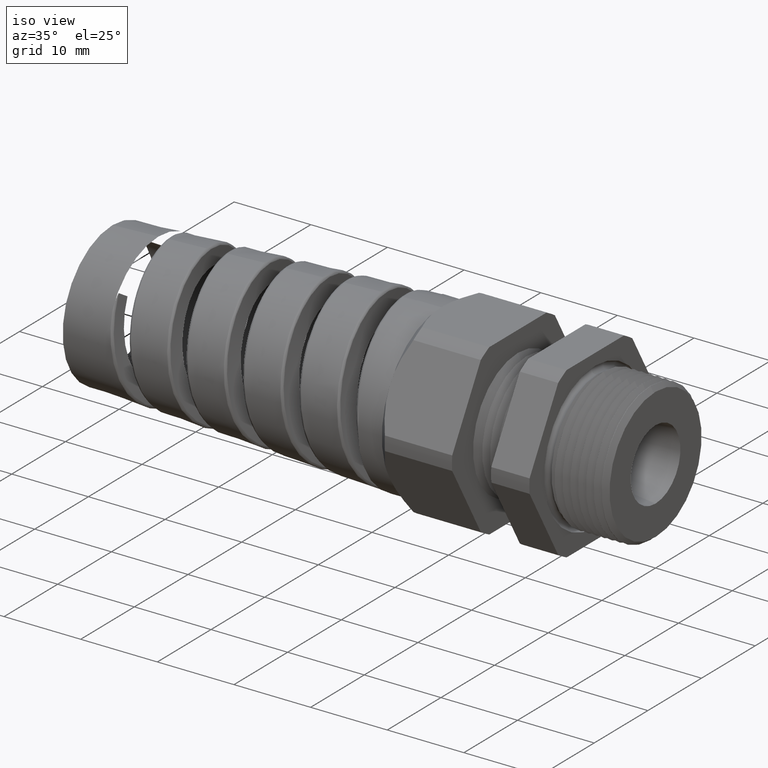
[diagram: clean part render]
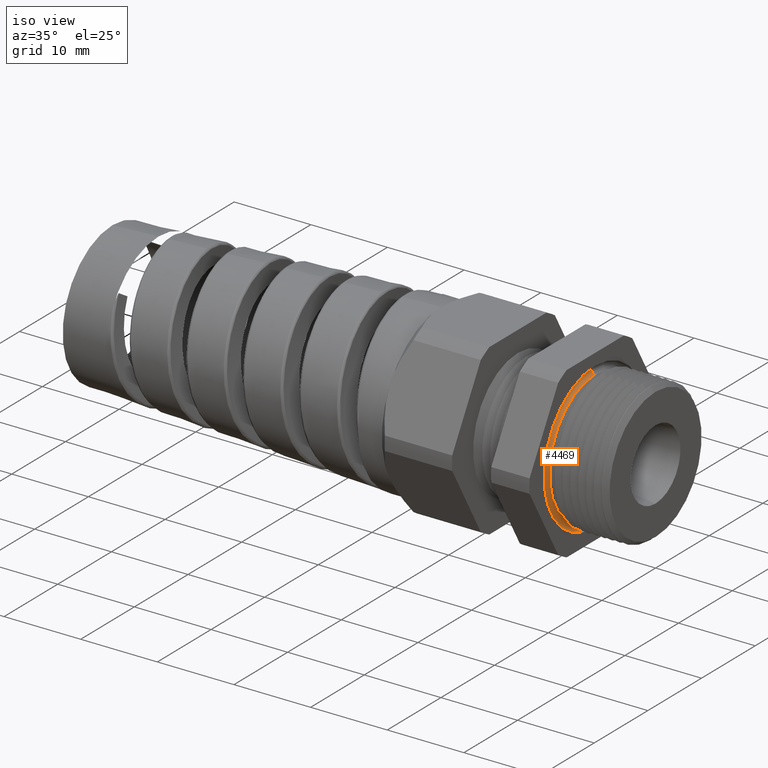
[diagram: same view with one face highlighted and labeled with its STEP entity id]
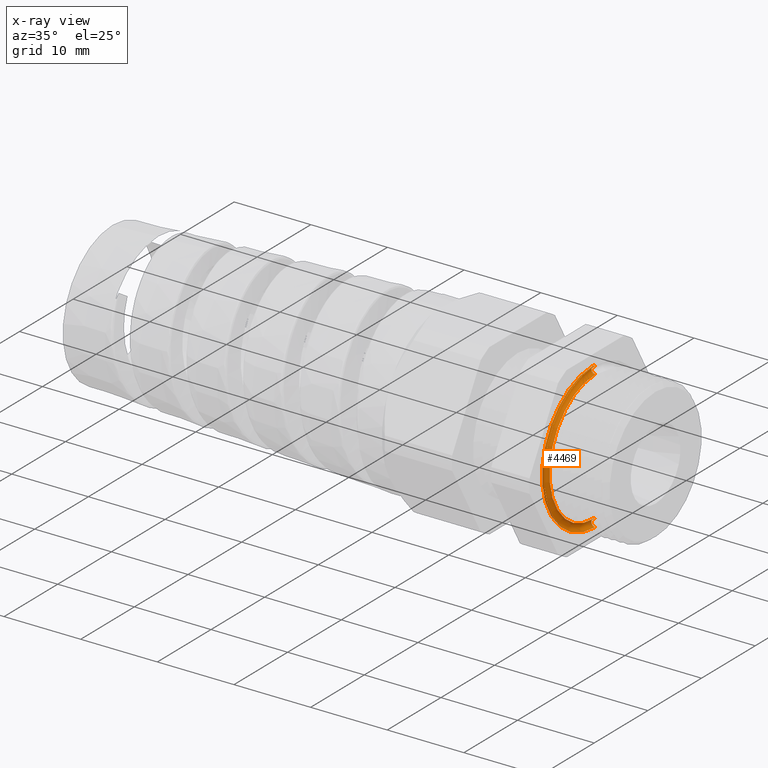
[diagram: x-ray of the same camera — body ghosted, the highlighted face saturated]
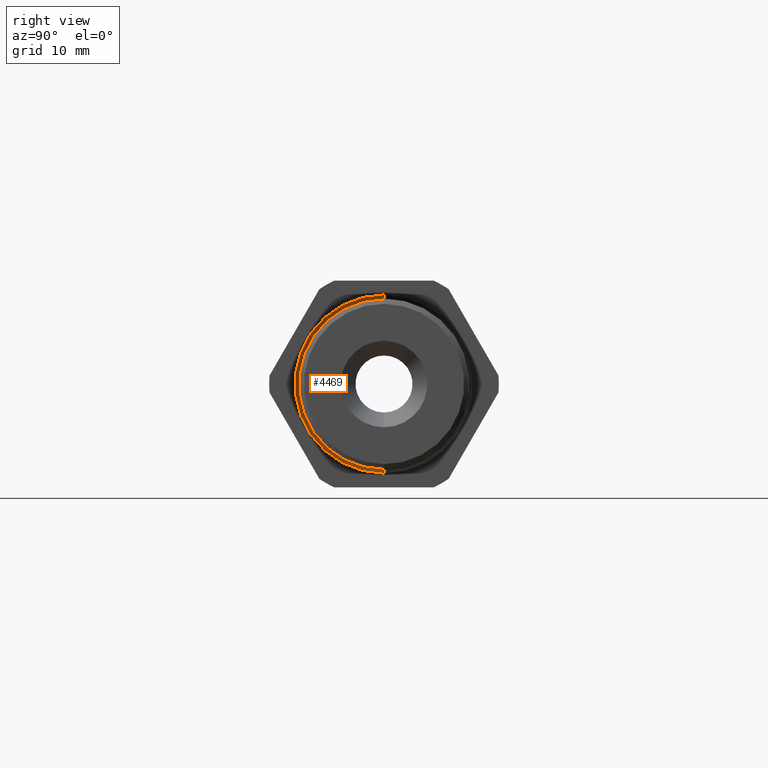
[diagram: same view with one face highlighted and labeled with its STEP entity id]
A machine part, iso view. The second image highlights one B-rep face of the part: STEP entity #4469.
The next image is the same camera in x-ray: the body ghosted, the highlighted face saturated — about 2% of this face is hidden behind the body in this view.
A second angle (right view) of the same face is appended — the face is thin or edge-on in the first view.
In plain terms, the highlighted toroidal blend (fillet) surface has major radius 9.017 mm and minor (blend) radius 0.508 mm.
Its self-contained STEP definition (entity closure, byte-faithful):
#2303 = CARTESIAN_POINT ( 'NONE',  ( -0.3100000000000000000, 4.102566777143634000E-017, 0.3350000000000000200 ) ) ;
#2369 = CARTESIAN_POINT ( 'NONE',  ( -0.3100000000000000000, 0.0000000000000000000, -0.3350000000000000200 ) ) ;
#4468 = EDGE_LOOP ( 'NONE', ( #4880, #4878, #4876, #4864 ) ) ;
#4469 = ADVANCED_FACE ( 'NONE', ( #6078 ), #6077, .F. ) ;
#4483 = EDGE_CURVE ( 'NONE', #8183, #8203, #6067, .T. ) ;
#4862 = EDGE_CURVE ( 'NONE', #4863, #4879, #6490, .T. ) ;
#4863 = VERTEX_POINT ( 'NONE', #6485 ) ;
#4864 = ORIENTED_EDGE ( 'NONE', *, *, #4865, .F. ) ;
#4865 = EDGE_CURVE ( 'NONE', #8203, #4863, #6484, .T. ) ;
#4876 = ORIENTED_EDGE ( 'NONE', *, *, #4862, .F. ) ;
#4877 = EDGE_CURVE ( 'NONE', #8183, #4879, #6526, .T. ) ;
#4878 = ORIENTED_EDGE ( 'NONE', *, *, #4877, .T. ) ;
#4879 = VERTEX_POINT ( 'NONE', #6521 ) ;
#4880 = ORIENTED_EDGE ( 'NONE', *, *, #4483, .F. ) ;
#6063 = DIRECTION ( 'NONE',  ( 0.0000000000000000000, 0.0000000000000000000, -1.000000000000000000 ) ) ;
#6064 = DIRECTION ( 'NONE',  ( 1.000000000000000000, 0.0000000000000000000, 0.0000000000000000000 ) ) ;
#6065 = CARTESIAN_POINT ( 'NONE',  ( -0.3100000000000000000, 0.0000000000000000000, 0.0000000000000000000 ) ) ;
#6066 = AXIS2_PLACEMENT_3D ( 'NONE', #6065, #6064, #6063 ) ;
#6067 = CIRCLE ( 'NONE', #6066, 0.3350000000000000200 ) ;
#6073 = DIRECTION ( 'NONE',  ( 0.0000000000000000000, 0.0000000000000000000, -1.000000000000000000 ) ) ;
#6074 = DIRECTION ( 'NONE',  ( 1.000000000000000000, 0.0000000000000000000, 0.0000000000000000000 ) ) ;
#6075 = CARTESIAN_POINT ( 'NONE',  ( -0.3100000000000000000, 0.0000000000000000000, 0.0000000000000000000 ) ) ;
#6076 = AXIS2_PLACEMENT_3D ( 'NONE', #6075, #6074, #6073 ) ;
#6077 = TOROIDAL_SURFACE ( 'NONE', #6076, 0.3550000000000000400, 0.01999999999999999700 ) ;
#6078 = FACE_OUTER_BOUND ( 'NONE', #4468, .T. ) ;
#6480 = DIRECTION ( 'NONE',  ( 0.0000000000000000000, 0.0000000000000000000, -1.000000000000000000 ) ) ;
#6481 = DIRECTION ( 'NONE',  ( 0.0000000000000000000, -1.000000000000000000, 0.0000000000000000000 ) ) ;
#6482 = CARTESIAN_POINT ( 'NONE',  ( -0.3100000000000000000, 0.0000000000000000000, -0.3550000000000000400 ) ) ;
#6483 = AXIS2_PLACEMENT_3D ( 'NONE', #6482, #6481, #6480 ) ;
#6484 = CIRCLE ( 'NONE', #6483, 0.01999999999999999000 ) ;
#6485 = CARTESIAN_POINT ( 'NONE',  ( -0.3100000000000000000, 0.0000000000000000000, -0.3750000000000000600 ) ) ;
#6486 = DIRECTION ( 'NONE',  ( 0.0000000000000000000, 0.0000000000000000000, -1.000000000000000000 ) ) ;
#6487 = DIRECTION ( 'NONE',  ( -1.000000000000000000, 0.0000000000000000000, 0.0000000000000000000 ) ) ;
#6488 = CARTESIAN_POINT ( 'NONE',  ( -0.3100000000000000000, 0.0000000000000000000, 0.0000000000000000000 ) ) ;
#6489 = AXIS2_PLACEMENT_3D ( 'NONE', #6488, #6487, #6486 ) ;
#6490 = CIRCLE ( 'NONE', #6489, 0.3750000000000000600 ) ;
#6521 = CARTESIAN_POINT ( 'NONE',  ( -0.3100000000000000000, 4.592425496802575500E-017, 0.3750000000000000600 ) ) ;
#6522 = DIRECTION ( 'NONE',  ( 0.0000000000000000000, 1.224646799147354900E-016, 1.000000000000000000 ) ) ;
#6523 = DIRECTION ( 'NONE',  ( 0.0000000000000000000, 1.000000000000000000, -1.224646799147353200E-016 ) ) ;
#6524 = CARTESIAN_POINT ( 'NONE',  ( -0.3100000000000000000, 4.347496136973104100E-017, 0.3550000000000000400 ) ) ;
#6525 = AXIS2_PLACEMENT_3D ( 'NONE', #6524, #6523, #6522 ) ;
#6526 = CIRCLE ( 'NONE', #6525, 0.01999999999999999000 ) ;
#8183 = VERTEX_POINT ( 'NONE', #2303 ) ;
#8203 = VERTEX_POINT ( 'NONE', #2369 ) ;